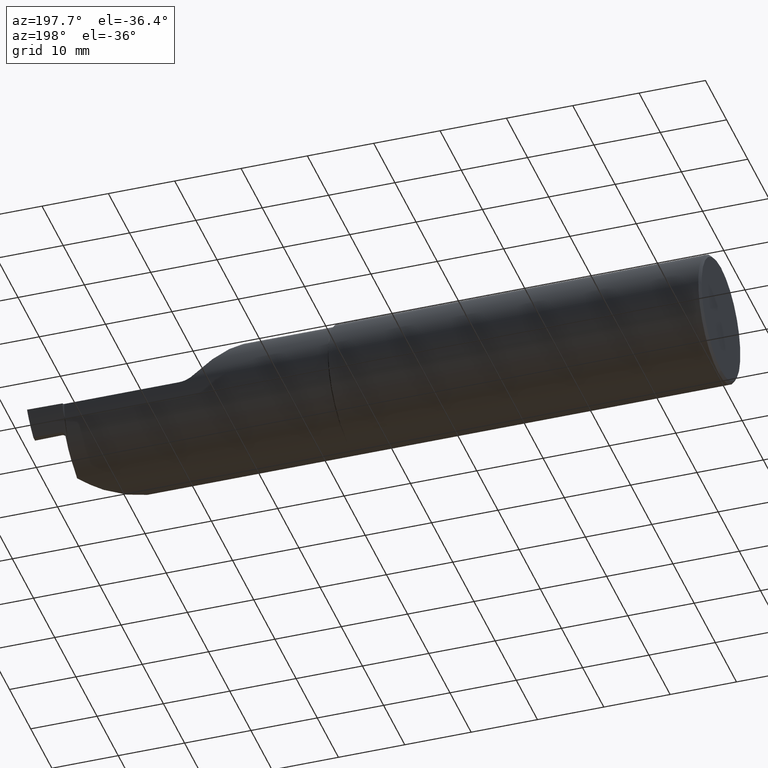
[diagram: clean part render]
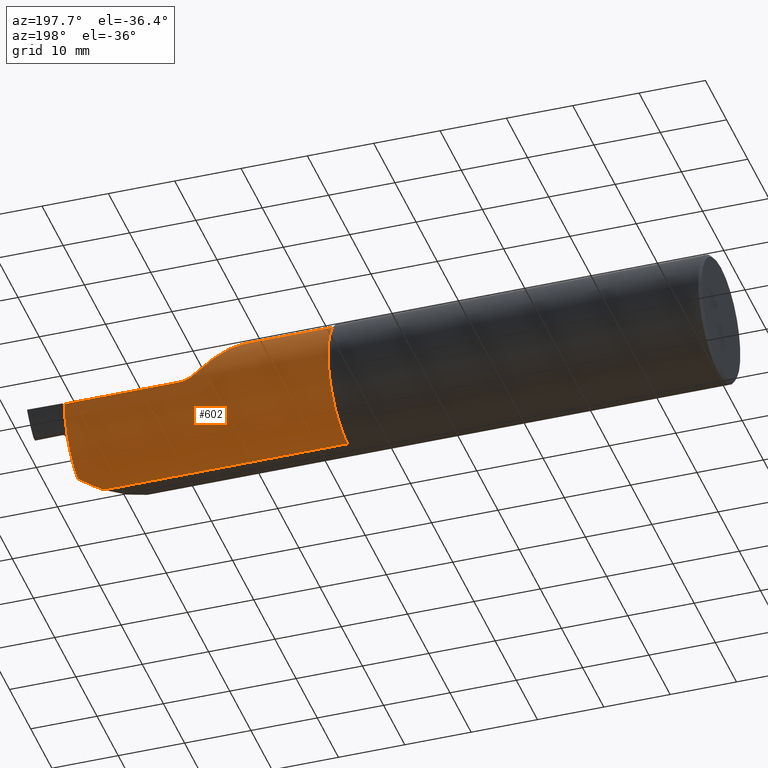
[diagram: same view with one face highlighted and labeled with its STEP entity id]
A machine part, auxiliary view. The second image highlights one B-rep face of the part: STEP entity #602.
In plain terms, the highlighted cylindrical surface (partial cylindrical patch) has radius 9.525 mm, axis along (-1, -0, -0).
Its self-contained STEP definition (entity closure, byte-faithful):
#18 = CARTESIAN_POINT ( 'NONE',  ( 3.780598671009594902, 0.3386322499168915590, -0.1189858892221504899 ) ) ;
#26 = LINE ( 'NONE', #659, #716 ) ;
#54 = CARTESIAN_POINT ( 'NONE',  ( 3.025361822505243659, 0.3569999263830916925, 0.02562779885089322071 ) ) ;
#55 = VERTEX_POINT ( 'NONE', #176 ) ;
#63 = CYLINDRICAL_SURFACE ( 'NONE', #699, 0.3749999999999998335 ) ;
#85 =( BOUNDED_CURVE ( )  B_SPLINE_CURVE ( 3, ( #265, #814, #591, #822 ),
 .UNSPECIFIED., .F., .T. ) 
 B_SPLINE_CURVE_WITH_KNOTS ( ( 4, 4 ),
 ( 4.810175822803776313, 5.997966107572837657 ),
 .UNSPECIFIED. ) 
 CURVE ( )  GEOMETRIC_REPRESENTATION_ITEM ( )  RATIONAL_B_SPLINE_CURVE ( ( 1.000000000000000000, 0.8858448504099136755, 0.8858448504099136755, 1.000000000000000000 ) ) 
 REPRESENTATION_ITEM ( '' )  );
#95 =( BOUNDED_CURVE ( )  B_SPLINE_CURVE ( 3, ( #948, #1003, #929, #541 ),
 .UNSPECIFIED., .F., .F. ) 
 B_SPLINE_CURVE_WITH_KNOTS ( ( 4, 4 ),
 ( 0.3512293182449677253, 0.7456174627997319559 ),
 .UNSPECIFIED. ) 
 CURVE ( )  GEOMETRIC_REPRESENTATION_ITEM ( )  RATIONAL_B_SPLINE_CURVE ( ( 1.000000000000000000, 0.9870801138334761582, 0.9870801138334761582, 1.000000000000000000 ) ) 
 REPRESENTATION_ITEM ( '' )  );
#97 = VERTEX_POINT ( 'NONE', #586 ) ;
#119 = CARTESIAN_POINT ( 'NONE',  ( 3.019060571484214250, 0.3566289001983811158, 0.03078942851578016573 ) ) ;
#128 = FACE_OUTER_BOUND ( 'NONE', #290, .T. ) ;
#141 = VERTEX_POINT ( 'NONE', #292 ) ;
#142 = LINE ( 'NONE', #1021, #612 ) ;
#146 = EDGE_CURVE ( 'NONE', #97, #141, #95, .T. ) ;
#157 = DIRECTION ( 'NONE',  ( 0.000000000000000000, 0.000000000000000000, 1.000000000000000000 ) ) ;
#162 = CARTESIAN_POINT ( 'NONE',  ( 2.217999999999999527, -0.01715076164021963126, 0.000000000000000000 ) ) ;
#176 = CARTESIAN_POINT ( 'NONE',  ( 2.217999999999999527, 0.08836216410824010437, 0.3598500000000000587 ) ) ;
#180 = CARTESIAN_POINT ( 'NONE',  ( 3.664553700959537252, -0.005296299040462346119, -0.3748125821213482700 ) ) ;
#181 = EDGE_CURVE ( 'NONE', #141, #377, #262, .T. ) ;
#191 = CARTESIAN_POINT ( 'NONE',  ( 3.781999999999992479, 0.3446876585490444289, -0.09847820913754173899 ) ) ;
#202 = ORIENTED_EDGE ( 'NONE', *, *, #629, .F. ) ;
#217 = VERTEX_POINT ( 'NONE', #873 ) ;
#228 = ORIENTED_EDGE ( 'NONE', *, *, #426, .T. ) ;
#244 = EDGE_CURVE ( 'NONE', #781, #518, #836, .T. ) ;
#262 = CIRCLE ( 'NONE', #555, 0.3749999999999996669 ) ;
#265 = CARTESIAN_POINT ( 'NONE',  ( 3.013238347648311333, 0.3560577416285020114, 0.03661165235168205301 ) ) ;
#290 = EDGE_LOOP ( 'NONE', ( #228, #443, #848, #479, #789, #485, #779, #851, #366, #1000, #202 ) ) ;
#292 = CARTESIAN_POINT ( 'NONE',  ( 3.781999999999999584, 0.2583501658244561905, -0.2544095889822222123 ) ) ;
#303 = VERTEX_POINT ( 'NONE', #1023 ) ;
#305 = CARTESIAN_POINT ( 'NONE',  ( 3.038883473395751267, 0.3575098277672587033, 0.01658204351399127086 ) ) ;
#311 = CARTESIAN_POINT ( 'NONE',  ( 3.664553700959537252, -0.005296299040462346119, -0.3748125821213482700 ) ) ;
#337 = DIRECTION ( 'NONE',  ( 0.000000000000000000, 0.000000000000000000, 1.000000000000000000 ) ) ;
#338 = CARTESIAN_POINT ( 'NONE',  ( 3.704757219211317842, 0.03490721921131892391, -0.3735410370179320094 ) ) ;
#365 = CARTESIAN_POINT ( 'NONE',  ( 3.085114159819533963, 0.3578517493328192689, 0.0008266118192357160398 ) ) ;
#366 = ORIENTED_EDGE ( 'NONE', *, *, #999, .T. ) ;
#371 = CARTESIAN_POINT ( 'NONE',  ( 3.781999999999999584, 0.3578492383597800530, 0.000000000000000000 ) ) ;
#377 = VERTEX_POINT ( 'NONE', #585 ) ;
#383 = CARTESIAN_POINT ( 'NONE',  ( 3.069098199700243779, 0.3578309987608568332, 0.004030619021138301221 ) ) ;
#384 =( BOUNDED_CURVE ( )  B_SPLINE_CURVE ( 3, ( #436, #907, #338, #180 ),
 .UNSPECIFIED., .F., .F. ) 
 B_SPLINE_CURVE_WITH_KNOTS ( ( 4, 4 ),
 ( 4.360361105921814584, 4.680771812723159009 ),
 .UNSPECIFIED. ) 
 CURVE ( )  GEOMETRIC_REPRESENTATION_ITEM ( )  RATIONAL_B_SPLINE_CURVE ( ( 1.000000000000000000, 0.9914630306830952700, 0.9914630306830952700, 1.000000000000000000 ) ) 
 REPRESENTATION_ITEM ( '' )  );
#394 = CARTESIAN_POINT ( 'NONE',  ( 2.209999999999999520, -0.01715076164021963126, 0.000000000000000000 ) ) ;
#426 = EDGE_CURVE ( 'NONE', #55, #303, #26, .T. ) ;
#431 = CARTESIAN_POINT ( 'NONE',  ( 3.780662846027682988, 0.3349556655929503690, -0.1290196260306632203 ) ) ;
#434 = CARTESIAN_POINT ( 'NONE',  ( 3.781999999999999584, -0.01715076164021963126, 0.000000000000000000 ) ) ;
#436 = CARTESIAN_POINT ( 'NONE',  ( 3.781999999999999584, 0.1121500000000000274, -0.3520032855517955528 ) ) ;
#443 = ORIENTED_EDGE ( 'NONE', *, *, #898, .F. ) ;
#478 = B_SPLINE_CURVE_WITH_KNOTS ( 'NONE', 3,
 ( #191, #504, #18, #431 ),
 .UNSPECIFIED., .F., .F.,
 ( 4, 4 ),
 ( 1.863151450015829640E-06, 0.0008184493934212624293 ),
 .UNSPECIFIED. ) ;
#479 = ORIENTED_EDGE ( 'NONE', *, *, #548, .T. ) ;
#482 = DIRECTION ( 'NONE',  ( -1.000000000000000000, -0.000000000000000000, -0.000000000000000000 ) ) ;
#485 = ORIENTED_EDGE ( 'NONE', *, *, #953, .T. ) ;
#491 = CARTESIAN_POINT ( 'NONE',  ( 3.013238347648311333, 0.3560577416285020114, 0.03661165235168205301 ) ) ;
#495 = DIRECTION ( 'NONE',  ( 0.000000000000000000, 0.000000000000000000, 1.000000000000000000 ) ) ;
#504 = CARTESIAN_POINT ( 'NONE',  ( 3.780852360468106355, 0.3418883838250624807, -0.1087635824467682866 ) ) ;
#518 = VERTEX_POINT ( 'NONE', #787 ) ;
#541 = CARTESIAN_POINT ( 'NONE',  ( 3.781999999999999584, 0.2583501658244561905, -0.2544095889822222123 ) ) ;
#548 = EDGE_CURVE ( 'NONE', #217, #781, #142, .T. ) ;
#553 = CARTESIAN_POINT ( 'NONE',  ( 3.101626695296630487, 0.3578492383597801640, 0.000000000000000000 ) ) ;
#555 = AXIS2_PLACEMENT_3D ( 'NONE', #434, #983, #909 ) ;
#558 = VERTEX_POINT ( 'NONE', #867 ) ;
#561 = LINE ( 'NONE', #657, #821 ) ;
#585 = CARTESIAN_POINT ( 'NONE',  ( 3.781999999999999584, 0.1121500000000000274, -0.3520032855517955528 ) ) ;
#586 = CARTESIAN_POINT ( 'NONE',  ( 3.780662846027682988, 0.3349556655929503690, -0.1290196260306632203 ) ) ;
#591 = CARTESIAN_POINT ( 'NONE',  ( 2.734435425775913586, 0.2399084116607304029, 0.3154145742240833661 ) ) ;
#598 = CARTESIAN_POINT ( 'NONE',  ( 3.046190358149832189, 0.3576483765745644972, 0.01266651274399054235 ) ) ;
#602 = ADVANCED_FACE ( 'NONE', ( #128 ), #63, .T. ) ;
#612 = VECTOR ( 'NONE', #693, 39.37007874015748143 ) ;
#629 = EDGE_CURVE ( 'NONE', #55, #558, #858, .T. ) ;
#657 = CARTESIAN_POINT ( 'NONE',  ( 2.999999999999999556, -0.005296299040555572761, -0.3748125821213490472 ) ) ;
#659 = CARTESIAN_POINT ( 'NONE',  ( 2.209999999999999520, 0.08836216410823945211, 0.3598500000000000587 ) ) ;
#683 = VERTEX_POINT ( 'NONE', #491 ) ;
#693 = DIRECTION ( 'NONE',  ( 1.000000000000000000, 0.000000000000000000, 0.000000000000000000 ) ) ;
#699 = AXIS2_PLACEMENT_3D ( 'NONE', #394, #891, #495 ) ;
#716 = VECTOR ( 'NONE', #976, 39.37007874015748143 ) ;
#729 = B_SPLINE_CURVE_WITH_KNOTS ( 'NONE', 3,
 ( #784, #119, #54, #305, #598, #944, #383, #365, #916, #553 ),
 .UNSPECIFIED., .F., .F.,
 ( 4, 2, 2, 2, 4 ),
 ( 0.000000000000000000, 0.0006198654333269901099, 0.001239730866653980220, 0.001859596299980970438, 0.002479461733307960439 ),
 .UNSPECIFIED. ) ;
#735 = EDGE_CURVE ( 'NONE', #683, #217, #729, .T. ) ;
#738 = AXIS2_PLACEMENT_3D ( 'NONE', #162, #482, #157 ) ;
#746 = CARTESIAN_POINT ( 'NONE',  ( 3.781999999999999584, -0.01715076164021963126, 0.000000000000000000 ) ) ;
#779 = ORIENTED_EDGE ( 'NONE', *, *, #146, .T. ) ;
#781 = VERTEX_POINT ( 'NONE', #371 ) ;
#784 = CARTESIAN_POINT ( 'NONE',  ( 3.013238347648311333, 0.3560577416285020114, 0.03661165235168205301 ) ) ;
#787 = CARTESIAN_POINT ( 'NONE',  ( 3.781999999999992479, 0.3446876585490444289, -0.09847820913754173899 ) ) ;
#789 = ORIENTED_EDGE ( 'NONE', *, *, #244, .T. ) ;
#794 = VERTEX_POINT ( 'NONE', #311 ) ;
#806 = EDGE_CURVE ( 'NONE', #794, #558, #561, .T. ) ;
#814 = CARTESIAN_POINT ( 'NONE',  ( 2.856066336462941724, 0.3406392102109843112, 0.1937836635370545346 ) ) ;
#821 = VECTOR ( 'NONE', #900, 39.37007874015748143 ) ;
#822 = CARTESIAN_POINT ( 'NONE',  ( 2.689999999999997282, 0.08836216410823956313, 0.3598500000000000587 ) ) ;
#836 = CIRCLE ( 'NONE', #1010, 0.3749999999999996669 ) ;
#848 = ORIENTED_EDGE ( 'NONE', *, *, #735, .T. ) ;
#851 = ORIENTED_EDGE ( 'NONE', *, *, #181, .T. ) ;
#856 = DIRECTION ( 'NONE',  ( -1.000000000000000000, -0.000000000000000000, -0.000000000000000000 ) ) ;
#858 = CIRCLE ( 'NONE', #738, 0.3750000000000000555 ) ;
#867 = CARTESIAN_POINT ( 'NONE',  ( 2.217999999999999527, -0.005296299040551805809, -0.3748125821213491582 ) ) ;
#873 = CARTESIAN_POINT ( 'NONE',  ( 3.101626695296630487, 0.3578492383597801640, 0.000000000000000000 ) ) ;
#891 = DIRECTION ( 'NONE',  ( -1.000000000000000000, -0.000000000000000000, -0.000000000000000000 ) ) ;
#898 = EDGE_CURVE ( 'NONE', #683, #303, #85, .T. ) ;
#900 = DIRECTION ( 'NONE',  ( -1.000000000000000000, -0.000000000000000000, -0.000000000000000000 ) ) ;
#907 = CARTESIAN_POINT ( 'NONE',  ( 3.744243075098297791, 0.07439307509829856668, -0.3658724718559223099 ) ) ;
#909 = DIRECTION ( 'NONE',  ( 0.000000000000000000, 0.000000000000000000, 1.000000000000000000 ) ) ;
#916 = CARTESIAN_POINT ( 'NONE',  ( 3.093374821991286439, 0.3578492383597802196, -5.002163074336419804E-18 ) ) ;
#929 = CARTESIAN_POINT ( 'NONE',  ( 3.781412393142665085, 0.2920141401352013832, -0.2179547675194770662 ) ) ;
#944 = CARTESIAN_POINT ( 'NONE',  ( 3.061312743841987594, 0.3578077948251029428, 0.006396521326471136214 ) ) ;
#948 = CARTESIAN_POINT ( 'NONE',  ( 3.780662846027682988, 0.3349556655929503690, -0.1290196260306632203 ) ) ;
#953 = EDGE_CURVE ( 'NONE', #518, #97, #478, .T. ) ;
#976 = DIRECTION ( 'NONE',  ( 1.000000000000000000, 0.000000000000000000, 0.000000000000000000 ) ) ;
#983 = DIRECTION ( 'NONE',  ( -1.000000000000000000, -0.000000000000000000, -0.000000000000000000 ) ) ;
#999 = EDGE_CURVE ( 'NONE', #377, #794, #384, .T. ) ;
#1000 = ORIENTED_EDGE ( 'NONE', *, *, #806, .T. ) ;
#1003 = CARTESIAN_POINT ( 'NONE',  ( 3.780960841151569163, 0.3178835363793707791, -0.1756110370244287622 ) ) ;
#1010 = AXIS2_PLACEMENT_3D ( 'NONE', #746, #856, #337 ) ;
#1021 = CARTESIAN_POINT ( 'NONE',  ( 2.209999999999999520, 0.3578492383597801640, 0.000000000000000000 ) ) ;
#1023 = CARTESIAN_POINT ( 'NONE',  ( 2.689999999999997282, 0.08836216410823956313, 0.3598500000000000587 ) ) ;